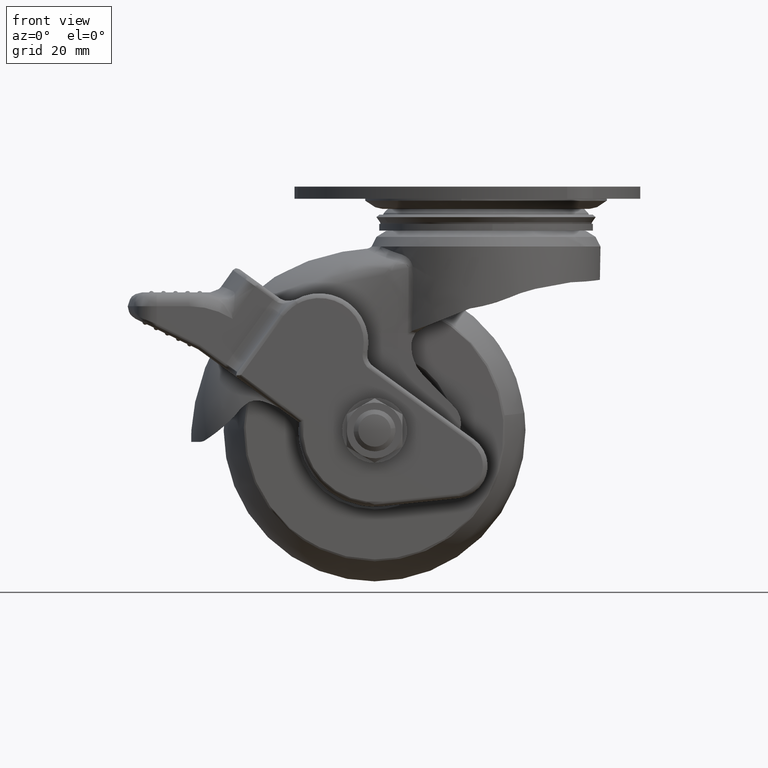
[diagram: clean part render]
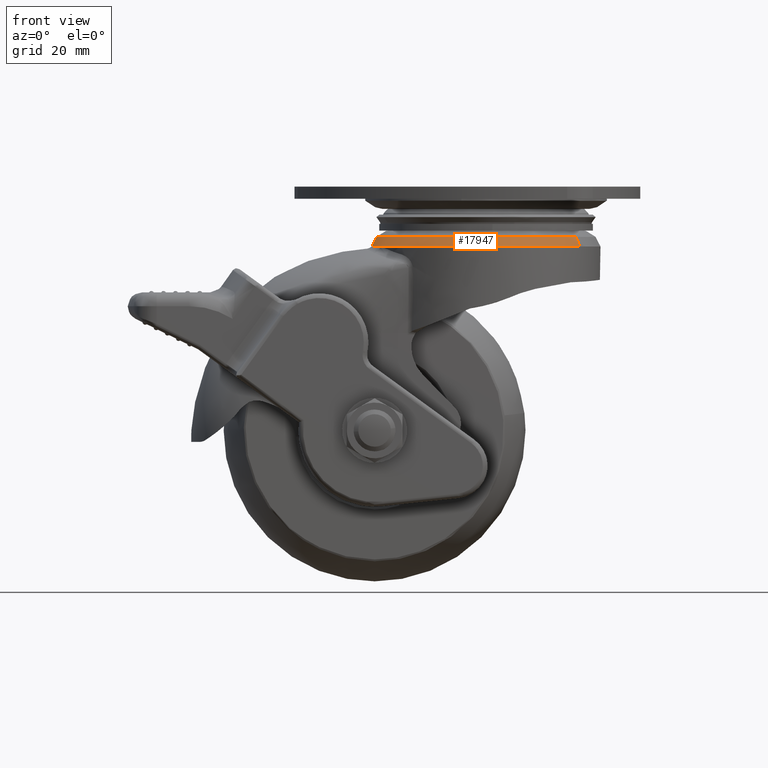
[diagram: same view with one face highlighted and labeled with its STEP entity id]
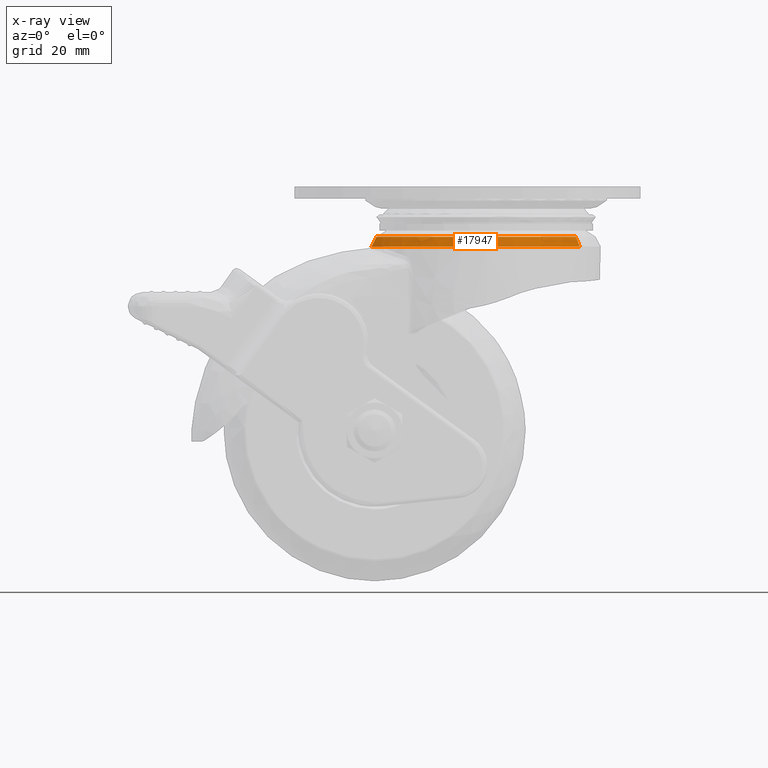
[diagram: x-ray of the same camera — body ghosted, the highlighted face saturated]
A machine part, front view. The second image highlights one B-rep face of the part: STEP entity #17947.
The next image is the same camera in x-ray: the body ghosted, the highlighted face saturated — about 0% of this face is hidden behind the body in this view.
In plain terms, the highlighted face is a freeform B-spline surface patch.
Its self-contained STEP definition (entity closure, byte-faithful):
#17725=CARTESIAN_POINT('',(-18.355503654035640,16.475467578936609,-12.893308622287829));
#17726=VERTEX_POINT('',#17725);
#17727=CARTESIAN_POINT('',(20.135062581974019,-14.245869617128990,-12.893308621623859));
#17728=VERTEX_POINT('',#17727);
#17746=CARTESIAN_POINT('',(-17.558782057823759,15.760349048201300,-10.810235605216890));
#17747=VERTEX_POINT('',#17746);
#17748=CARTESIAN_POINT('',(-17.558782057823766,15.760349048201302,-10.810235605216889));
#17749=CARTESIAN_POINT('',(-18.104602002583270,16.250264168405380,-11.749935067819898));
#17750=CARTESIAN_POINT('',(-18.355503654035648,16.475467578936605,-12.893308622287826));
#17758=(BOUNDED_CURVE()B_SPLINE_CURVE(2,(#17748,#17749,#17750),.UNSPECIFIED.,.F.,.U.)B_SPLINE_CURVE_WITH_KNOTS((3,3),(-1.380011385834236,-0.633974727407051),.UNSPECIFIED.)CURVE()GEOMETRIC_REPRESENTATION_ITEM()RATIONAL_B_SPLINE_CURVE((0.907728735421448,0.891440308417624,0.907129248687392))REPRESENTATION_ITEM(''));
#17759=EDGE_CURVE('',#17747,#17726,#17758,.T.);
#17793=CARTESIAN_POINT('',(19.261099134790602,-13.627526899451340,-10.810235599792360));
#17794=VERTEX_POINT('',#17793);
#17808=CARTESIAN_POINT('',(19.261099134790602,-13.627526899451341,-10.810235599792366));
#17809=CARTESIAN_POINT('',(19.859836111297394,-14.051142612887896,-11.749935060415304));
#17810=CARTESIAN_POINT('',(20.135062581974012,-14.245869617128989,-12.893308621623861));
#17818=(BOUNDED_CURVE()B_SPLINE_CURVE(2,(#17808,#17809,#17810),.UNSPECIFIED.,.F.,.U.)B_SPLINE_CURVE_WITH_KNOTS((3,3),(-1.380011390219513,-0.633974727847907),.UNSPECIFIED.)CURVE()GEOMETRIC_REPRESENTATION_ITEM()RATIONAL_B_SPLINE_CURVE((0.948627760771918,0.931605434950420,0.948001263080404))REPRESENTATION_ITEM(''));
#17819=EDGE_CURVE('',#17794,#17728,#17818,.T.);
#17824=CARTESIAN_POINT('',(19.201715418135365,-13.585511997192551,-10.718805135245400));
#17825=CARTESIAN_POINT('',(5.616203420942823,-32.787227415327919,-10.718805135245402));
#17826=CARTESIAN_POINT('',(-13.585511997192551,-19.201715418135365,-10.718805135245400));
#17827=CARTESIAN_POINT('',(-32.787227415327919,-5.616203420942825,-10.718805135245402));
#17828=CARTESIAN_POINT('',(-19.201715418135375,13.585511997192540,-10.718805135245400));
#17829=CARTESIAN_POINT('',(-18.414763371978847,14.697787282889538,-10.718805135245406));
#17830=CARTESIAN_POINT('',(-17.504646736703275,15.711758458178510,-10.718805135245406));
#17831=CARTESIAN_POINT('',(19.877154993727366,-14.063395991292216,-11.739078278524172));
#17832=CARTESIAN_POINT('',(5.813759002435151,-33.940550985019584,-11.739078278524168));
#17833=CARTESIAN_POINT('',(-14.063395991292216,-19.877154993727366,-11.739078278524172));
#17834=CARTESIAN_POINT('',(-33.940550985019584,-5.813759002435154,-11.739078278524168));
#17835=CARTESIAN_POINT('',(-19.877154993727377,14.063395991292216,-11.739078278524172));
#17836=CARTESIAN_POINT('',(-19.062521121000007,15.214796674410884,-11.739078278524174));
#17837=CARTESIAN_POINT('',(-18.120390221348398,16.264435301559548,-11.739078278524167));
#17838=CARTESIAN_POINT('',(20.161202395241986,-14.264363941135054,-13.005758181189897));
#17839=CARTESIAN_POINT('',(5.896838454106933,-34.425566336377045,-13.005758181189890));
#17840=CARTESIAN_POINT('',(-14.264363941135054,-20.161202395241986,-13.005758181189897));
#17841=CARTESIAN_POINT('',(-34.425566336377045,-5.896838454106937,-13.005758181189890));
#17842=CARTESIAN_POINT('',(-20.161202395241986,14.264363941135054,-13.005758181189897));
#17843=CARTESIAN_POINT('',(-19.334927287397882,15.432218305489547,-13.005758181189892));
#17844=CARTESIAN_POINT('',(-18.379333201791479,16.496856419469456,-13.005758181189890));
#17852=(BOUNDED_SURFACE()B_SPLINE_SURFACE(2,2,((#17824,#17831,#17838),(#17825,#17832,#17839),(#17826,#17833,#17840),(#17827,#17834,#17841),(#17828,#17835,#17842),(#17829,#17836,#17843),(#17830,#17837,#17844)),.UNSPECIFIED.,.F.,.F.,.U.)B_SPLINE_SURFACE_WITH_KNOTS((3,2,2,3),(3,3),(0.0,40.919475370179534,81.838950740359067,85.112508769973431),(0.0,2.598953435627874),.UNSPECIFIED.)GEOMETRIC_REPRESENTATION_ITEM()RATIONAL_B_SPLINE_SURFACE(((0.950411665952139,0.929852820098814,0.949722587390784),(0.672042533913561,0.657505234597306,0.671555281790057),(0.950411665952139,0.929852820098814,0.949722587390784),(0.672042533913561,0.657505234597306,0.671555281790057),(0.950411665952139,0.929852820098814,0.949722587390784),(0.928142135389052,0.908065013258693,0.927469202942726),(0.909435729716060,0.889763255512992,0.908776360006357)))REPRESENTATION_ITEM('')SURFACE());
#17853=CARTESIAN_POINT('',(-22.676814697007249,9.701939060641280,-12.893308622349220));
#17854=VERTEX_POINT('',#17853);
#17855=CARTESIAN_POINT('',(-22.676814697007231,9.701939060641273,-12.893308622349220));
#17856=CARTESIAN_POINT('',(-21.075239071954847,13.445379773425554,-12.893308622349222));
#17857=CARTESIAN_POINT('',(-18.355503654035648,16.475467578936613,-12.893308622287828));
#17865=(BOUNDED_CURVE()B_SPLINE_CURVE(2,(#17855,#17856,#17857),.UNSPECIFIED.,.F.,.U.)B_SPLINE_CURVE_WITH_KNOTS((3,3),(0.0,0.061658515649167),.UNSPECIFIED.)CURVE()GEOMETRIC_REPRESENTATION_ITEM()RATIONAL_B_SPLINE_CURVE((1.0,0.944468437804419,0.916328825182109))REPRESENTATION_ITEM(''));
#17866=EDGE_CURVE('',#17854,#17726,#17865,.T.);
#17867=ORIENTED_EDGE('',*,*,#17866,.F.);
#17868=CARTESIAN_POINT('',(-22.676814697010300,-9.701939060634100,-12.893308622349220));
#17869=VERTEX_POINT('',#17868);
#17870=CARTESIAN_POINT('',(-22.676814697010300,-9.701939060634116,-12.893308622349220));
#17871=CARTESIAN_POINT('',(-26.827645525500017,4.234460E-012,-12.893308622349226));
#17872=CARTESIAN_POINT('',(-22.676814697007231,9.701939060641275,-12.893308622349220));
#17880=(BOUNDED_CURVE()B_SPLINE_CURVE(2,(#17870,#17871,#17872),.UNSPECIFIED.,.F.,.U.)CURVE()GEOMETRIC_REPRESENTATION_ITEM()QUASI_UNIFORM_CURVE()RATIONAL_B_SPLINE_CURVE((1.0,0.919389936975574,1.0))REPRESENTATION_ITEM(''));
#17881=EDGE_CURVE('',#17869,#17854,#17880,.T.);
#17882=ORIENTED_EDGE('',*,*,#17881,.F.);
#17883=CARTESIAN_POINT('',(20.135062581974019,-14.245869617128996,-12.893308621623859));
#17884=CARTESIAN_POINT('',(14.503561914729483,-22.205413079059333,-12.893308622349217));
#17885=CARTESIAN_POINT('',(4.951786800347135,-24.162892083165630,-12.893308622349220));
#17886=CARTESIAN_POINT('',(-14.761493728195033,-28.202804274835124,-12.893308622349219));
#17887=CARTESIAN_POINT('',(-22.676814697010300,-9.701939060634116,-12.893308622349220));
#17895=(BOUNDED_CURVE()B_SPLINE_CURVE(2,(#17883,#17884,#17885,#17886,#17887),.UNSPECIFIED.,.F.,.U.)B_SPLINE_CURVE_WITH_KNOTS((3,2,3),(0.612961417622767,0.750000000000000,1.0),.UNSPECIFIED.)CURVE()GEOMETRIC_REPRESENTATION_ITEM()RATIONAL_B_SPLINE_CURVE((0.888465351242066,0.876578823211123,1.0,0.774842284107388,1.0))REPRESENTATION_ITEM(''));
#17896=EDGE_CURVE('',#17728,#17869,#17895,.T.);
#17897=ORIENTED_EDGE('',*,*,#17896,.F.);
#17898=ORIENTED_EDGE('',*,*,#17819,.F.);
#17899=CARTESIAN_POINT('',(10.579368355993941,-21.089722671611160,-10.810235468556730));
#17900=VERTEX_POINT('',#17899);
#17901=CARTESIAN_POINT('',(19.261099134790598,-13.627526899451340,-10.810235599792360));
#17902=CARTESIAN_POINT('',(15.853268078937230,-18.444143463800224,-10.810235599464241));
#17903=CARTESIAN_POINT('',(10.579368355993935,-21.089722671611160,-10.810235468556732));
#17911=(BOUNDED_CURVE()B_SPLINE_CURVE(2,(#17901,#17902,#17903),.UNSPECIFIED.,.F.,.U.)B_SPLINE_CURVE_WITH_KNOTS((3,3),(0.599340826589075,0.673769062115751),.UNSPECIFIED.)CURVE()GEOMETRIC_REPRESENTATION_ITEM()RATIONAL_B_SPLINE_CURVE((0.859724235322031,0.841824785580796,0.875845342762750))REPRESENTATION_ITEM(''));
#17912=EDGE_CURVE('',#17794,#17900,#17911,.T.);
#17913=ORIENTED_EDGE('',*,*,#17912,.T.);
#17914=CARTESIAN_POINT('',(-23.594478787704048,0.0,-10.810235599464241));
#17915=VERTEX_POINT('',#17914);
#17916=CARTESIAN_POINT('',(10.579368355993935,-21.089722671611163,-10.810235468556733));
#17917=CARTESIAN_POINT('',(5.586195415245558,-23.594478787704048,-10.810235599464241));
#17918=CARTESIAN_POINT('',(0.0,-23.594478787704048,-10.810235599464241));
#17919=CARTESIAN_POINT('',(-23.594478787704059,-23.594478787704059,-10.810235599464241));
#17920=CARTESIAN_POINT('',(-23.594478787704048,0.0,-10.810235599464241));
#17928=(BOUNDED_CURVE()B_SPLINE_CURVE(2,(#17916,#17917,#17918,#17919,#17920),.UNSPECIFIED.,.F.,.U.)B_SPLINE_CURVE_WITH_KNOTS((3,2,3),(0.673769062115752,0.750000000000000,1.0),.UNSPECIFIED.)CURVE()GEOMETRIC_REPRESENTATION_ITEM()RATIONAL_B_SPLINE_CURVE((0.875845342762751,0.910689900919657,1.0,0.707106781186547,1.0))REPRESENTATION_ITEM(''));
#17929=EDGE_CURVE('',#17900,#17915,#17928,.T.);
#17930=ORIENTED_EDGE('',*,*,#17929,.T.);
#17931=CARTESIAN_POINT('',(-23.594478787704048,0.0,-10.810235599464241));
#17932=CARTESIAN_POINT('',(-23.594478787704055,9.035911459931983,-10.810235599464241));
#17933=CARTESIAN_POINT('',(-17.558782057823763,15.760349048201299,-10.810235605216889));
#17941=(BOUNDED_CURVE()B_SPLINE_CURVE(2,(#17931,#17932,#17933),.UNSPECIFIED.,.F.,.U.)B_SPLINE_CURVE_WITH_KNOTS((3,3),(0.0,0.116861575739725),.UNSPECIFIED.)CURVE()GEOMETRIC_REPRESENTATION_ITEM()RATIONAL_B_SPLINE_CURVE((1.0,0.863088147703919,0.854174173781955))REPRESENTATION_ITEM(''));
#17942=EDGE_CURVE('',#17915,#17747,#17941,.T.);
#17943=ORIENTED_EDGE('',*,*,#17942,.T.);
#17944=ORIENTED_EDGE('',*,*,#17759,.T.);
#17945=EDGE_LOOP('',(#17867,#17882,#17897,#17898,#17913,#17930,#17943,#17944));
#17946=FACE_OUTER_BOUND('',#17945,.T.);
#17947=ADVANCED_FACE('',(#17946),#17852,.T.);